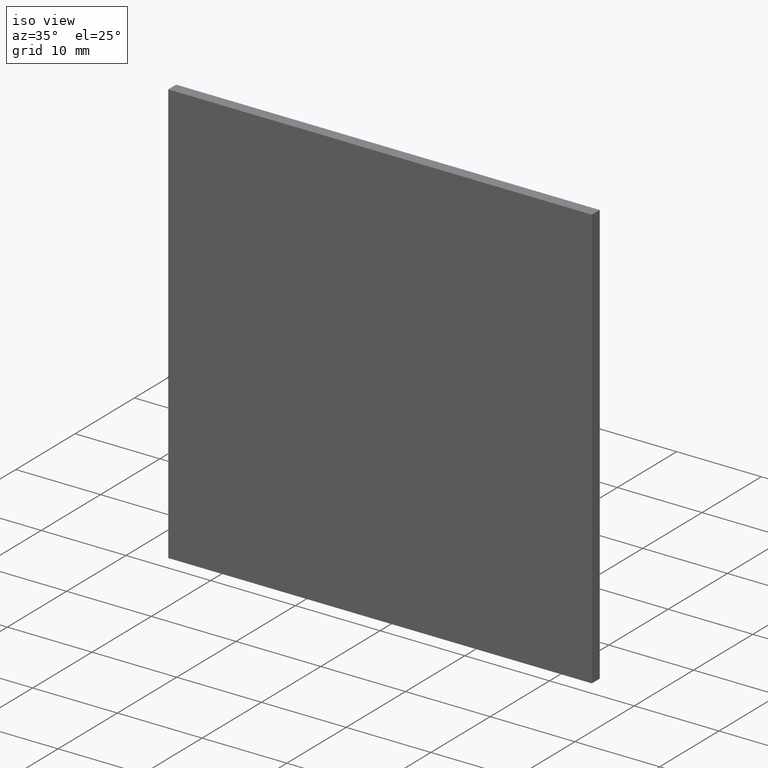
[diagram: clean part render]
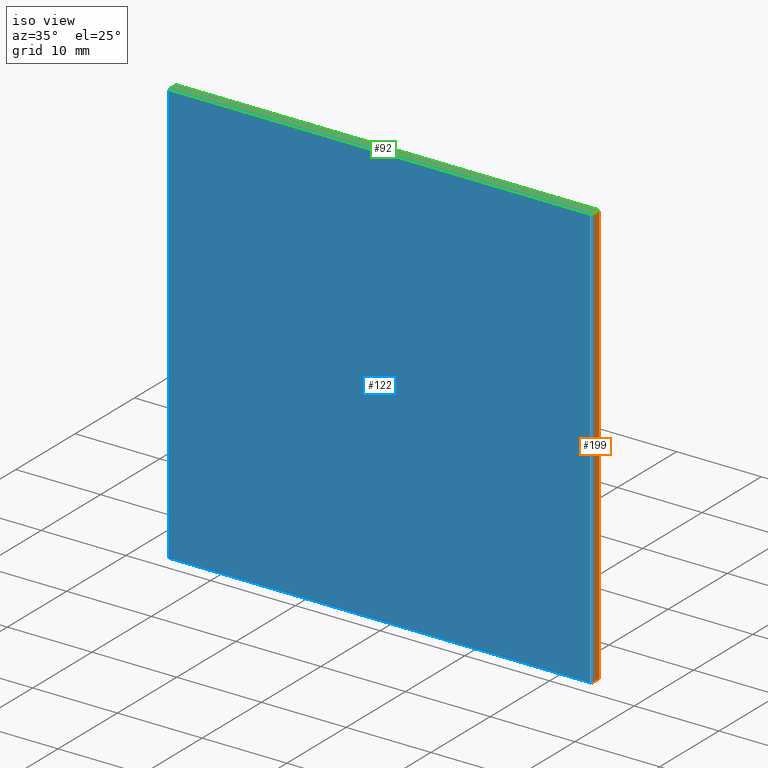
[diagram: same view with three faces highlighted in distinct colors, each labeled with its STEP entity id]
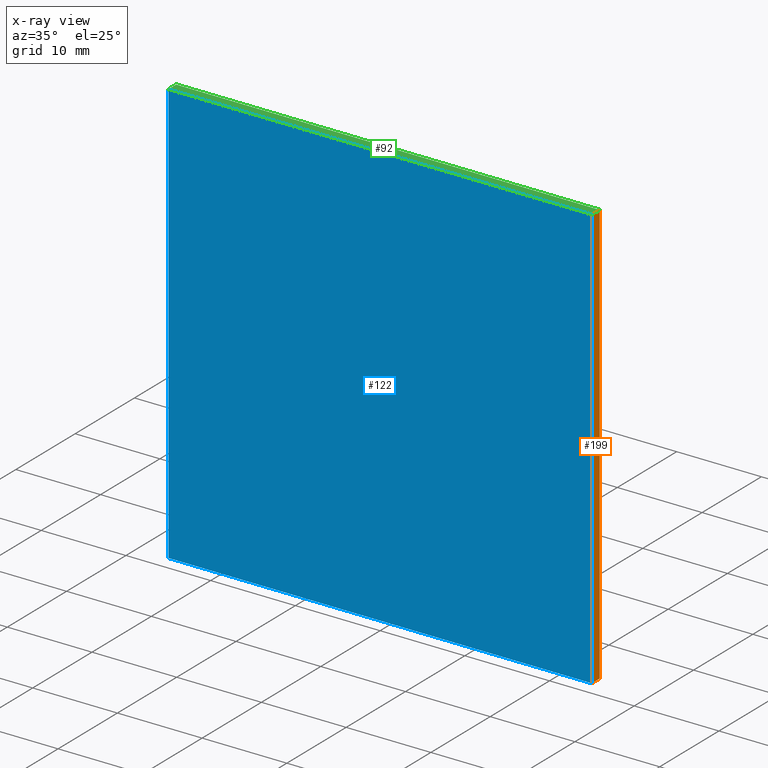
[diagram: x-ray of the same camera — body ghosted, the three highlighted faces saturated]
A machine part, iso view with three faces highlighted in distinct colors.
The next image is the same camera in x-ray (body ghosted, the three faces saturated) — at least one of them is partly hidden behind the body in this view.
Their STEP definitions:

[orange] entity #199 — the highlighted planar face has unit normal (-1, 0, 0).
#1 = VECTOR ( 'NONE', #43, 1000.000000000000000 ) ;
#8 = EDGE_CURVE ( 'NONE', #67, #59, #190, .T. ) ;
#18 = ORIENTED_EDGE ( 'NONE', *, *, #90, .F. ) ;
#19 = AXIS2_PLACEMENT_3D ( 'NONE', #29, #70, #183 ) ;
#21 = DIRECTION ( 'NONE',  ( -0.0000000000000000000, -1.000000000000000000, -0.0000000000000000000 ) ) ;
#24 = EDGE_CURVE ( 'NONE', #52, #107, #32, .T. ) ;
#29 = CARTESIAN_POINT ( 'NONE',  ( 25.00000000000000000, 1.330000000000000100, 25.00000000000000000 ) ) ;
#32 = LINE ( 'NONE', #109, #65 ) ;
#37 = CARTESIAN_POINT ( 'NONE',  ( 25.00000000000000000, 0.0000000000000000000, -25.00000000000000000 ) ) ;
#41 = ORIENTED_EDGE ( 'NONE', *, *, #24, .T. ) ;
#43 = DIRECTION ( 'NONE',  ( 0.0000000000000000000, 0.0000000000000000000, -1.000000000000000000 ) ) ;
#44 = FACE_OUTER_BOUND ( 'NONE', #123, .T. ) ;
#52 = VERTEX_POINT ( 'NONE', #159 ) ;
#56 = CARTESIAN_POINT ( 'NONE',  ( 25.00000000000000000, 0.0000000000000000000, 25.00000000000000000 ) ) ;
#59 = VERTEX_POINT ( 'NONE', #37 ) ;
#65 = VECTOR ( 'NONE', #176, 1000.000000000000000 ) ;
#66 = LINE ( 'NONE', #56, #1 ) ;
#67 = VERTEX_POINT ( 'NONE', #129 ) ;
#70 = DIRECTION ( 'NONE',  ( -1.000000000000000000, 0.0000000000000000000, 0.0000000000000000000 ) ) ;
#72 = ORIENTED_EDGE ( 'NONE', *, *, #174, .T. ) ;
#76 = CARTESIAN_POINT ( 'NONE',  ( 25.00000000000000000, 1.330000000000000100, -25.00000000000000000 ) ) ;
#90 = EDGE_CURVE ( 'NONE', #52, #67, #138, .T. ) ;
#107 = VERTEX_POINT ( 'NONE', #115 ) ;
#109 = CARTESIAN_POINT ( 'NONE',  ( 25.00000000000000000, 1.330000000000000100, 25.00000000000000000 ) ) ;
#115 = CARTESIAN_POINT ( 'NONE',  ( 25.00000000000000000, 0.0000000000000000000, 25.00000000000000000 ) ) ;
#123 = EDGE_LOOP ( 'NONE', ( #72, #126, #18, #41 ) ) ;
#126 = ORIENTED_EDGE ( 'NONE', *, *, #8, .F. ) ;
#127 = VECTOR ( 'NONE', #196, 1000.000000000000000 ) ;
#129 = CARTESIAN_POINT ( 'NONE',  ( 25.00000000000000000, 1.330000000000000100, -25.00000000000000000 ) ) ;
#138 = LINE ( 'NONE', #193, #127 ) ;
#150 = VECTOR ( 'NONE', #21, 1000.000000000000000 ) ;
#159 = CARTESIAN_POINT ( 'NONE',  ( 25.00000000000000000, 1.330000000000000100, 25.00000000000000000 ) ) ;
#165 = PLANE ( 'NONE',  #19 ) ;
#174 = EDGE_CURVE ( 'NONE', #107, #59, #66, .T. ) ;
#176 = DIRECTION ( 'NONE',  ( -0.0000000000000000000, -1.000000000000000000, -0.0000000000000000000 ) ) ;
#183 = DIRECTION ( 'NONE',  ( 0.0000000000000000000, 0.0000000000000000000, 1.000000000000000000 ) ) ;
#190 = LINE ( 'NONE', #76, #150 ) ;
#193 = CARTESIAN_POINT ( 'NONE',  ( 25.00000000000000000, 1.330000000000000100, 25.00000000000000000 ) ) ;
#196 = DIRECTION ( 'NONE',  ( 0.0000000000000000000, 0.0000000000000000000, -1.000000000000000000 ) ) ;
#199 = ADVANCED_FACE ( 'NONE', ( #44 ), #165, .F. ) ;

[blue] entity #122 — the highlighted planar face has unit normal (0, -1, 0).
#1 = VECTOR ( 'NONE', #43, 1000.000000000000000 ) ;
#6 = ORIENTED_EDGE ( 'NONE', *, *, #164, .F. ) ;
#12 = VERTEX_POINT ( 'NONE', #144 ) ;
#28 = DIRECTION ( 'NONE',  ( -0.0000000000000000000, -0.0000000000000000000, 1.000000000000000000 ) ) ;
#36 = VECTOR ( 'NONE', #68, 1000.000000000000000 ) ;
#37 = CARTESIAN_POINT ( 'NONE',  ( 25.00000000000000000, 0.0000000000000000000, -25.00000000000000000 ) ) ;
#43 = DIRECTION ( 'NONE',  ( 0.0000000000000000000, 0.0000000000000000000, -1.000000000000000000 ) ) ;
#50 = VERTEX_POINT ( 'NONE', #77 ) ;
#51 = LINE ( 'NONE', #151, #177 ) ;
#56 = CARTESIAN_POINT ( 'NONE',  ( 25.00000000000000000, 0.0000000000000000000, 25.00000000000000000 ) ) ;
#57 = DIRECTION ( 'NONE',  ( -1.000000000000000000, -0.0000000000000000000, -0.0000000000000000000 ) ) ;
#59 = VERTEX_POINT ( 'NONE', #37 ) ;
#66 = LINE ( 'NONE', #56, #1 ) ;
#68 = DIRECTION ( 'NONE',  ( 1.000000000000000000, 0.0000000000000000000, 0.0000000000000000000 ) ) ;
#74 = ORIENTED_EDGE ( 'NONE', *, *, #134, .F. ) ;
#77 = CARTESIAN_POINT ( 'NONE',  ( -25.00000000000000000, 0.0000000000000000000, 25.00000000000000000 ) ) ;
#79 = ORIENTED_EDGE ( 'NONE', *, *, #195, .F. ) ;
#81 = DIRECTION ( 'NONE',  ( 0.0000000000000000000, -0.0000000000000000000, -1.000000000000000000 ) ) ;
#84 = FACE_OUTER_BOUND ( 'NONE', #178, .T. ) ;
#96 = CARTESIAN_POINT ( 'NONE',  ( -25.00000000000000000, 0.0000000000000000000, 25.00000000000000000 ) ) ;
#107 = VERTEX_POINT ( 'NONE', #115 ) ;
#115 = CARTESIAN_POINT ( 'NONE',  ( 25.00000000000000000, 0.0000000000000000000, 25.00000000000000000 ) ) ;
#117 = LINE ( 'NONE', #96, #188 ) ;
#122 = ADVANCED_FACE ( 'NONE', ( #84 ), #133, .T. ) ;
#133 = PLANE ( 'NONE',  #189 ) ;
#134 = EDGE_CURVE ( 'NONE', #50, #107, #191, .T. ) ;
#144 = CARTESIAN_POINT ( 'NONE',  ( -25.00000000000000000, 0.0000000000000000000, -25.00000000000000000 ) ) ;
#151 = CARTESIAN_POINT ( 'NONE',  ( -25.00000000000000000, 0.0000000000000000000, -25.00000000000000000 ) ) ;
#158 = ORIENTED_EDGE ( 'NONE', *, *, #174, .F. ) ;
#163 = CARTESIAN_POINT ( 'NONE',  ( 0.0000000000000000000, 0.0000000000000000000, 0.0000000000000000000 ) ) ;
#164 = EDGE_CURVE ( 'NONE', #12, #50, #117, .T. ) ;
#174 = EDGE_CURVE ( 'NONE', #107, #59, #66, .T. ) ;
#177 = VECTOR ( 'NONE', #57, 1000.000000000000000 ) ;
#178 = EDGE_LOOP ( 'NONE', ( #158, #74, #6, #79 ) ) ;
#182 = DIRECTION ( 'NONE',  ( 0.0000000000000000000, -1.000000000000000000, 0.0000000000000000000 ) ) ;
#188 = VECTOR ( 'NONE', #28, 1000.000000000000000 ) ;
#189 = AXIS2_PLACEMENT_3D ( 'NONE', #163, #182, #81 ) ;
#191 = LINE ( 'NONE', #201, #36 ) ;
#195 = EDGE_CURVE ( 'NONE', #59, #12, #51, .T. ) ;
#201 = CARTESIAN_POINT ( 'NONE',  ( -25.00000000000000000, 0.0000000000000000000, 25.00000000000000000 ) ) ;

[green] entity #92 — the highlighted planar face has unit normal (0, 0, -1).
#3 = AXIS2_PLACEMENT_3D ( 'NONE', #78, #111, #25 ) ;
#9 = VECTOR ( 'NONE', #26, 1000.000000000000000 ) ;
#16 = EDGE_LOOP ( 'NONE', ( #31, #63, #153, #155 ) ) ;
#24 = EDGE_CURVE ( 'NONE', #52, #107, #32, .T. ) ;
#25 = DIRECTION ( 'NONE',  ( -1.000000000000000000, 0.0000000000000000000, -0.0000000000000000000 ) ) ;
#26 = DIRECTION ( 'NONE',  ( -0.0000000000000000000, -1.000000000000000000, -0.0000000000000000000 ) ) ;
#31 = ORIENTED_EDGE ( 'NONE', *, *, #134, .T. ) ;
#32 = LINE ( 'NONE', #109, #65 ) ;
#36 = VECTOR ( 'NONE', #68, 1000.000000000000000 ) ;
#50 = VERTEX_POINT ( 'NONE', #77 ) ;
#52 = VERTEX_POINT ( 'NONE', #159 ) ;
#63 = ORIENTED_EDGE ( 'NONE', *, *, #24, .F. ) ;
#65 = VECTOR ( 'NONE', #176, 1000.000000000000000 ) ;
#68 = DIRECTION ( 'NONE',  ( 1.000000000000000000, 0.0000000000000000000, 0.0000000000000000000 ) ) ;
#75 = VECTOR ( 'NONE', #194, 1000.000000000000000 ) ;
#77 = CARTESIAN_POINT ( 'NONE',  ( -25.00000000000000000, 0.0000000000000000000, 25.00000000000000000 ) ) ;
#78 = CARTESIAN_POINT ( 'NONE',  ( -25.00000000000000000, 1.330000000000000100, 25.00000000000000000 ) ) ;
#87 = VERTEX_POINT ( 'NONE', #160 ) ;
#92 = ADVANCED_FACE ( 'NONE', ( #97 ), #179, .F. ) ;
#97 = FACE_OUTER_BOUND ( 'NONE', #16, .T. ) ;
#105 = EDGE_CURVE ( 'NONE', #87, #52, #166, .T. ) ;
#106 = EDGE_CURVE ( 'NONE', #87, #50, #125, .T. ) ;
#107 = VERTEX_POINT ( 'NONE', #115 ) ;
#109 = CARTESIAN_POINT ( 'NONE',  ( 25.00000000000000000, 1.330000000000000100, 25.00000000000000000 ) ) ;
#111 = DIRECTION ( 'NONE',  ( 0.0000000000000000000, 0.0000000000000000000, -1.000000000000000000 ) ) ;
#115 = CARTESIAN_POINT ( 'NONE',  ( 25.00000000000000000, 0.0000000000000000000, 25.00000000000000000 ) ) ;
#125 = LINE ( 'NONE', #197, #9 ) ;
#132 = CARTESIAN_POINT ( 'NONE',  ( -25.00000000000000000, 1.330000000000000100, 25.00000000000000000 ) ) ;
#134 = EDGE_CURVE ( 'NONE', #50, #107, #191, .T. ) ;
#153 = ORIENTED_EDGE ( 'NONE', *, *, #105, .F. ) ;
#155 = ORIENTED_EDGE ( 'NONE', *, *, #106, .T. ) ;
#159 = CARTESIAN_POINT ( 'NONE',  ( 25.00000000000000000, 1.330000000000000100, 25.00000000000000000 ) ) ;
#160 = CARTESIAN_POINT ( 'NONE',  ( -25.00000000000000000, 1.330000000000000100, 25.00000000000000000 ) ) ;
#166 = LINE ( 'NONE', #132, #75 ) ;
#176 = DIRECTION ( 'NONE',  ( -0.0000000000000000000, -1.000000000000000000, -0.0000000000000000000 ) ) ;
#179 = PLANE ( 'NONE',  #3 ) ;
#191 = LINE ( 'NONE', #201, #36 ) ;
#194 = DIRECTION ( 'NONE',  ( 1.000000000000000000, 0.0000000000000000000, 0.0000000000000000000 ) ) ;
#197 = CARTESIAN_POINT ( 'NONE',  ( -25.00000000000000000, 1.330000000000000100, 25.00000000000000000 ) ) ;
#201 = CARTESIAN_POINT ( 'NONE',  ( -25.00000000000000000, 0.0000000000000000000, 25.00000000000000000 ) ) ;